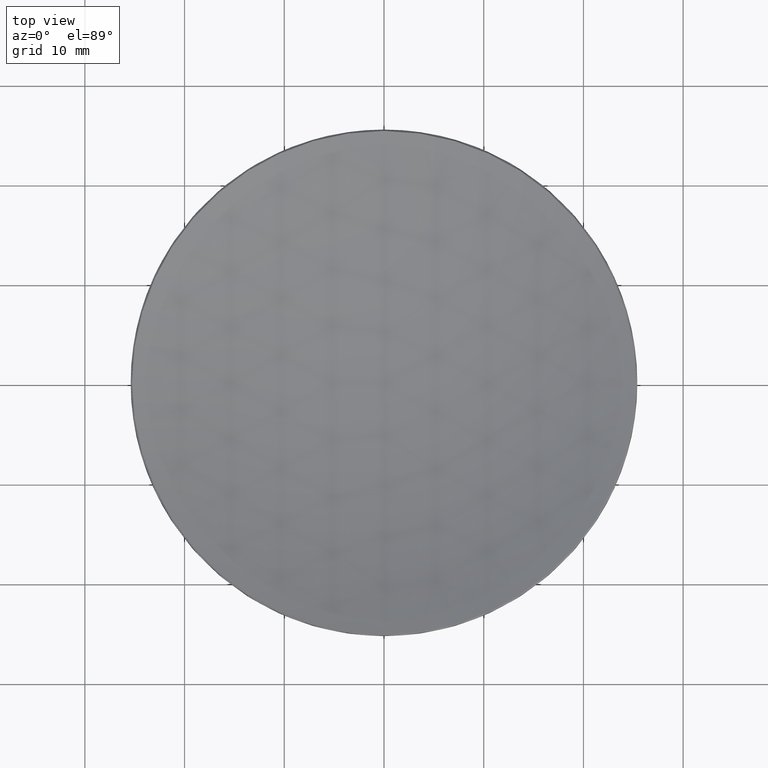
[diagram: clean part render]
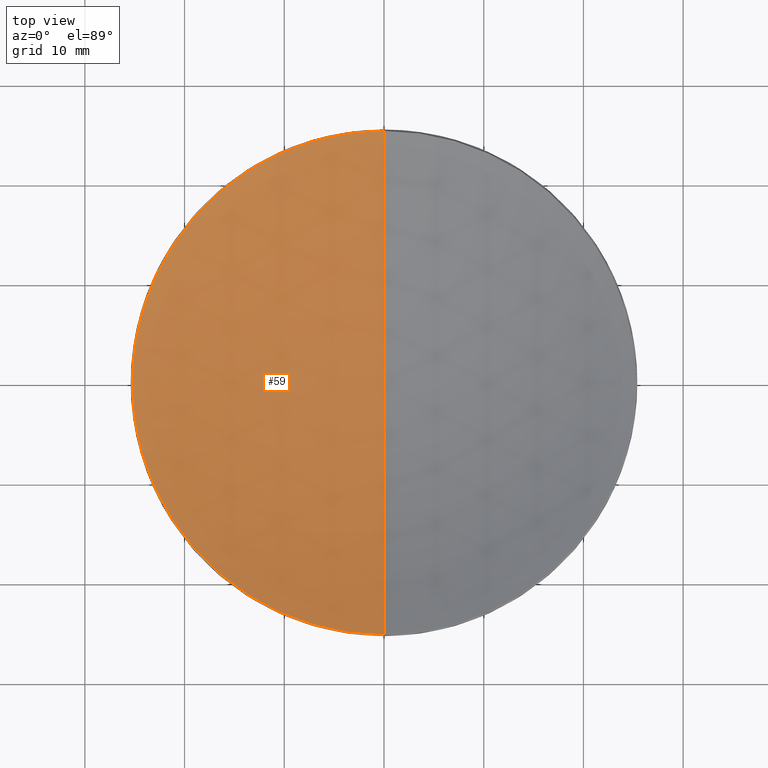
[diagram: same view with one face highlighted and labeled with its STEP entity id]
A machine part, top view. The second image highlights one B-rep face of the part: STEP entity #59.
In plain terms, the highlighted spherical surface has radius 65.8 mm.
Its self-contained STEP definition (entity closure, byte-faithful):
#9 = DIRECTION ( 'NONE',  ( 1.000000000000000000, 0.000000000000000000, 0.000000000000000000 ) ) ;
#26 = FACE_OUTER_BOUND ( 'NONE', #280, .T. ) ;
#31 = DIRECTION ( 'NONE',  ( 1.000000000000000000, 0.000000000000000000, 0.000000000000000000 ) ) ;
#48 = SPHERICAL_SURFACE ( 'NONE', #254, 65.79999999999999716 ) ;
#50 = CIRCLE ( 'NONE', #199, 65.79999999999999716 ) ;
#53 = VERTEX_POINT ( 'NONE', #164 ) ;
#59 = ADVANCED_FACE ( 'NONE', ( #26 ), #48, .F. ) ;
#67 = ORIENTED_EDGE ( 'NONE', *, *, #201, .T. ) ;
#69 = CIRCLE ( 'NONE', #221, 25.25886542154865921 ) ;
#95 = EDGE_CURVE ( 'NONE', #236, #176, #69, .T. ) ;
#96 = CARTESIAN_POINT ( 'NONE',  ( 0.000000000000000000, 0.000000000000000000, 77.79991762762121255 ) ) ;
#98 = DIRECTION ( 'NONE',  ( -1.224646799147353207E-16, -1.000000000000000000, 0.000000000000000000 ) ) ;
#106 = ORIENTED_EDGE ( 'NONE', *, *, #95, .T. ) ;
#111 = CARTESIAN_POINT ( 'NONE',  ( 0.000000000000000000, 0.000000000000000000, 77.79991762762121255 ) ) ;
#113 = ORIENTED_EDGE ( 'NONE', *, *, #189, .F. ) ;
#114 = DIRECTION ( 'NONE',  ( -0.000000000000000000, -0.000000000000000000, 1.000000000000000000 ) ) ;
#117 = AXIS2_PLACEMENT_3D ( 'NONE', #229, #217, #9 ) ;
#137 = EDGE_CURVE ( 'NONE', #53, #236, #262, .T. ) ;
#149 = CARTESIAN_POINT ( 'NONE',  ( 0.000000000000000000, 4.029087969194792054E-15, 11.99991762762121716 ) ) ;
#161 = DIRECTION ( 'NONE',  ( -1.000000000000000000, 0.000000000000000000, 0.000000000000000000 ) ) ;
#164 = CARTESIAN_POINT ( 'NONE',  ( 0.000000000000000000, 25.25886542154867698, 17.04113457845135216 ) ) ;
#165 = DIRECTION ( 'NONE',  ( 1.000000000000000000, 0.000000000000000000, 0.000000000000000000 ) ) ;
#167 = DIRECTION ( 'NONE',  ( -1.000000000000000000, 1.224646799147353207E-16, 0.000000000000000000 ) ) ;
#171 = CARTESIAN_POINT ( 'NONE',  ( -3.093318868859335282E-15, -25.25886542154867698, 17.04113457845135216 ) ) ;
#175 = ORIENTED_EDGE ( 'NONE', *, *, #137, .T. ) ;
#176 = VERTEX_POINT ( 'NONE', #171 ) ;
#189 = EDGE_CURVE ( 'NONE', #256, #176, #50, .T. ) ;
#199 = AXIS2_PLACEMENT_3D ( 'NONE', #231, #167, #98 ) ;
#201 = EDGE_CURVE ( 'NONE', #256, #53, #246, .T. ) ;
#204 = DIRECTION ( 'NONE',  ( 0.000000000000000000, 1.000000000000000000, 0.000000000000000000 ) ) ;
#215 = AXIS2_PLACEMENT_3D ( 'NONE', #96, #165, #244 ) ;
#217 = DIRECTION ( 'NONE',  ( -0.000000000000000000, -0.000000000000000000, 1.000000000000000000 ) ) ;
#221 = AXIS2_PLACEMENT_3D ( 'NONE', #243, #114, #31 ) ;
#229 = CARTESIAN_POINT ( 'NONE',  ( 0.000000000000000000, 0.000000000000000000, 17.04113457845134860 ) ) ;
#230 = CARTESIAN_POINT ( 'NONE',  ( -25.25886542154865921, 0.000000000000000000, 17.04113457845134860 ) ) ;
#231 = CARTESIAN_POINT ( 'NONE',  ( 0.000000000000000000, 0.000000000000000000, 77.79991762762121255 ) ) ;
#236 = VERTEX_POINT ( 'NONE', #230 ) ;
#243 = CARTESIAN_POINT ( 'NONE',  ( 0.000000000000000000, 0.000000000000000000, 17.04113457845134860 ) ) ;
#244 = DIRECTION ( 'NONE',  ( 0.000000000000000000, 0.000000000000000000, -1.000000000000000000 ) ) ;
#246 = CIRCLE ( 'NONE', #215, 65.79999999999999716 ) ;
#254 = AXIS2_PLACEMENT_3D ( 'NONE', #111, #161, #204 ) ;
#256 = VERTEX_POINT ( 'NONE', #149 ) ;
#262 = CIRCLE ( 'NONE', #117, 25.25886542154865921 ) ;
#280 = EDGE_LOOP ( 'NONE', ( #113, #67, #175, #106 ) ) ;